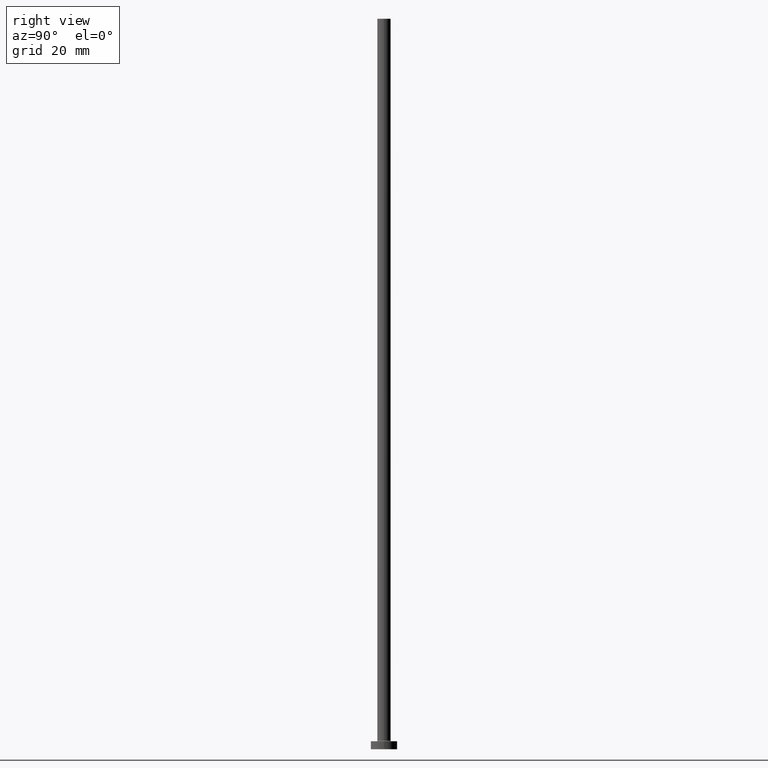
[diagram: clean part render]
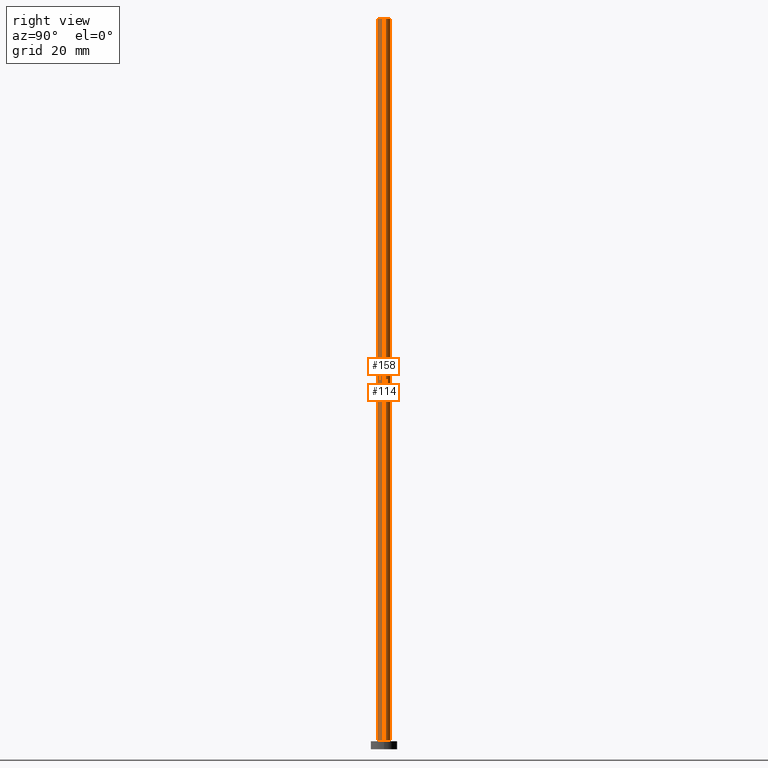
[diagram: same view with one multi-face feature highlighted, each face labeled with its STEP entity id]
A machine part, right view. The highlighted faces form ONE feature: a constant-radius fillet chain: 2 tangent blend faces with common blend radius 2.5 mm. The faces share edges in the B-rep.
Their STEP definitions:
[1] entity #158 (Cylinder):
#7 = LINE ( 'NONE', #285, #134 ) ;
#14 = VERTEX_POINT ( 'NONE', #226 ) ;
#21 = DIRECTION ( 'NONE',  ( 1.000000000000000000, 0.000000000000000000, 0.000000000000000000 ) ) ;
#22 = EDGE_CURVE ( 'NONE', #14, #107, #239, .T. ) ;
#36 = DIRECTION ( 'NONE',  ( 1.000000000000000000, 0.000000000000000000, 0.000000000000000000 ) ) ;
#59 = CYLINDRICAL_SURFACE ( 'NONE', #312, 2.500000000000000000 ) ;
#67 = CIRCLE ( 'NONE', #327, 2.500000000000000000 ) ;
#96 = FACE_OUTER_BOUND ( 'NONE', #115, .T. ) ;
#100 = CIRCLE ( 'NONE', #385, 2.500000000000000000 ) ;
#107 = VERTEX_POINT ( 'NONE', #346 ) ;
#115 = EDGE_LOOP ( 'NONE', ( #199, #340, #333, #414 ) ) ;
#134 = VECTOR ( 'NONE', #293, 1000.000000000000000 ) ;
#135 = CARTESIAN_POINT ( 'NONE',  ( 2.500000000000000000, 3.061616997868383141E-16, 275.0000000000000000 ) ) ;
#138 = EDGE_CURVE ( 'NONE', #411, #14, #100, .T. ) ;
#145 = DIRECTION ( 'NONE',  ( 0.000000000000000000, 0.000000000000000000, 1.000000000000000000 ) ) ;
#158 = ADVANCED_FACE ( 'NONE', ( #96 ), #59, .T. ) ;
#182 = CARTESIAN_POINT ( 'NONE',  ( 0.000000000000000000, 0.000000000000000000, 3.300000000000025135 ) ) ;
#195 = EDGE_CURVE ( 'NONE', #357, #107, #67, .T. ) ;
#199 = ORIENTED_EDGE ( 'NONE', *, *, #22, .F. ) ;
#206 = CARTESIAN_POINT ( 'NONE',  ( 0.000000000000000000, 0.000000000000000000, 275.0000000000000000 ) ) ;
#208 = DIRECTION ( 'NONE',  ( -1.000000000000000000, 0.000000000000000000, 0.000000000000000000 ) ) ;
#226 = CARTESIAN_POINT ( 'NONE',  ( 2.500000000000000000, 3.061616997868383141E-16, 275.0000000000000000 ) ) ;
#239 = LINE ( 'NONE', #135, #432 ) ;
#280 = CARTESIAN_POINT ( 'NONE',  ( 0.000000000000000000, 0.000000000000000000, 275.0000000000000000 ) ) ;
#285 = CARTESIAN_POINT ( 'NONE',  ( -2.500000000000000000, 0.000000000000000000, 275.0000000000000000 ) ) ;
#293 = DIRECTION ( 'NONE',  ( -0.000000000000000000, -0.000000000000000000, -1.000000000000000000 ) ) ;
#312 = AXIS2_PLACEMENT_3D ( 'NONE', #206, #348, #208 ) ;
#322 = DIRECTION ( 'NONE',  ( -0.000000000000000000, -0.000000000000000000, -1.000000000000000000 ) ) ;
#324 = EDGE_CURVE ( 'NONE', #411, #357, #7, .T. ) ;
#327 = AXIS2_PLACEMENT_3D ( 'NONE', #182, #145, #36 ) ;
#332 = CARTESIAN_POINT ( 'NONE',  ( -2.500000000000000000, 0.000000000000000000, 3.300000000000025135 ) ) ;
#333 = ORIENTED_EDGE ( 'NONE', *, *, #324, .T. ) ;
#340 = ORIENTED_EDGE ( 'NONE', *, *, #138, .F. ) ;
#346 = CARTESIAN_POINT ( 'NONE',  ( 2.500000000000000000, 3.061616997868383141E-16, 3.300000000000025135 ) ) ;
#348 = DIRECTION ( 'NONE',  ( -0.000000000000000000, -0.000000000000000000, -1.000000000000000000 ) ) ;
#357 = VERTEX_POINT ( 'NONE', #332 ) ;
#375 = CARTESIAN_POINT ( 'NONE',  ( -2.500000000000000000, 0.000000000000000000, 275.0000000000000000 ) ) ;
#385 = AXIS2_PLACEMENT_3D ( 'NONE', #280, #389, #21 ) ;
#389 = DIRECTION ( 'NONE',  ( 0.000000000000000000, 0.000000000000000000, 1.000000000000000000 ) ) ;
#411 = VERTEX_POINT ( 'NONE', #375 ) ;
#414 = ORIENTED_EDGE ( 'NONE', *, *, #195, .T. ) ;
#432 = VECTOR ( 'NONE', #322, 1000.000000000000000 ) ;
[2] entity #114 (Cylinder):
#7 = LINE ( 'NONE', #285, #134 ) ;
#8 = CIRCLE ( 'NONE', #44, 2.500000000000000000 ) ;
#14 = VERTEX_POINT ( 'NONE', #226 ) ;
#22 = EDGE_CURVE ( 'NONE', #14, #107, #239, .T. ) ;
#34 = DIRECTION ( 'NONE',  ( 0.000000000000000000, 0.000000000000000000, 1.000000000000000000 ) ) ;
#44 = AXIS2_PLACEMENT_3D ( 'NONE', #424, #99, #56 ) ;
#56 = DIRECTION ( 'NONE',  ( 1.000000000000000000, 0.000000000000000000, 0.000000000000000000 ) ) ;
#69 = EDGE_CURVE ( 'NONE', #107, #357, #8, .T. ) ;
#71 = ORIENTED_EDGE ( 'NONE', *, *, #292, .F. ) ;
#85 = ORIENTED_EDGE ( 'NONE', *, *, #22, .T. ) ;
#91 = EDGE_LOOP ( 'NONE', ( #71, #85, #166, #342 ) ) ;
#99 = DIRECTION ( 'NONE',  ( 0.000000000000000000, 0.000000000000000000, 1.000000000000000000 ) ) ;
#103 = FACE_OUTER_BOUND ( 'NONE', #91, .T. ) ;
#107 = VERTEX_POINT ( 'NONE', #346 ) ;
#110 = CARTESIAN_POINT ( 'NONE',  ( 0.000000000000000000, 0.000000000000000000, 275.0000000000000000 ) ) ;
#114 = ADVANCED_FACE ( 'NONE', ( #103 ), #386, .T. ) ;
#134 = VECTOR ( 'NONE', #293, 1000.000000000000000 ) ;
#135 = CARTESIAN_POINT ( 'NONE',  ( 2.500000000000000000, 3.061616997868383141E-16, 275.0000000000000000 ) ) ;
#166 = ORIENTED_EDGE ( 'NONE', *, *, #69, .T. ) ;
#175 = CARTESIAN_POINT ( 'NONE',  ( 0.000000000000000000, 0.000000000000000000, 275.0000000000000000 ) ) ;
#226 = CARTESIAN_POINT ( 'NONE',  ( 2.500000000000000000, 3.061616997868383141E-16, 275.0000000000000000 ) ) ;
#239 = LINE ( 'NONE', #135, #432 ) ;
#244 = DIRECTION ( 'NONE',  ( -0.000000000000000000, -0.000000000000000000, -1.000000000000000000 ) ) ;
#285 = CARTESIAN_POINT ( 'NONE',  ( -2.500000000000000000, 0.000000000000000000, 275.0000000000000000 ) ) ;
#292 = EDGE_CURVE ( 'NONE', #14, #411, #352, .T. ) ;
#293 = DIRECTION ( 'NONE',  ( -0.000000000000000000, -0.000000000000000000, -1.000000000000000000 ) ) ;
#303 = AXIS2_PLACEMENT_3D ( 'NONE', #175, #244, #460 ) ;
#322 = DIRECTION ( 'NONE',  ( -0.000000000000000000, -0.000000000000000000, -1.000000000000000000 ) ) ;
#324 = EDGE_CURVE ( 'NONE', #411, #357, #7, .T. ) ;
#332 = CARTESIAN_POINT ( 'NONE',  ( -2.500000000000000000, 0.000000000000000000, 3.300000000000025135 ) ) ;
#334 = AXIS2_PLACEMENT_3D ( 'NONE', #110, #34, #435 ) ;
#342 = ORIENTED_EDGE ( 'NONE', *, *, #324, .F. ) ;
#346 = CARTESIAN_POINT ( 'NONE',  ( 2.500000000000000000, 3.061616997868383141E-16, 3.300000000000025135 ) ) ;
#352 = CIRCLE ( 'NONE', #334, 2.500000000000000000 ) ;
#357 = VERTEX_POINT ( 'NONE', #332 ) ;
#375 = CARTESIAN_POINT ( 'NONE',  ( -2.500000000000000000, 0.000000000000000000, 275.0000000000000000 ) ) ;
#386 = CYLINDRICAL_SURFACE ( 'NONE', #303, 2.500000000000000000 ) ;
#411 = VERTEX_POINT ( 'NONE', #375 ) ;
#424 = CARTESIAN_POINT ( 'NONE',  ( 0.000000000000000000, 0.000000000000000000, 3.300000000000025135 ) ) ;
#432 = VECTOR ( 'NONE', #322, 1000.000000000000000 ) ;
#435 = DIRECTION ( 'NONE',  ( 1.000000000000000000, 0.000000000000000000, 0.000000000000000000 ) ) ;
#460 = DIRECTION ( 'NONE',  ( -1.000000000000000000, 0.000000000000000000, 0.000000000000000000 ) ) ;